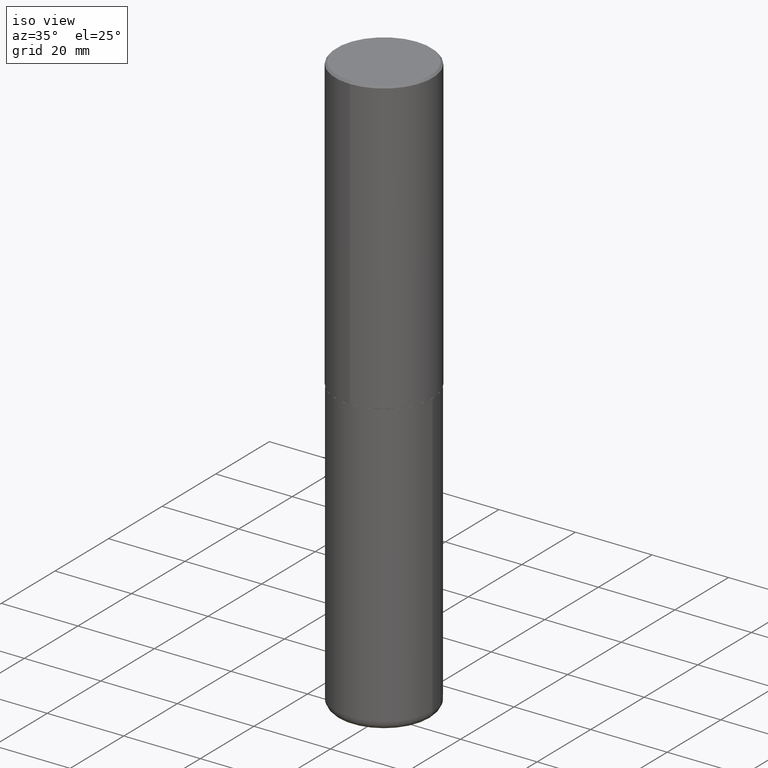
[diagram: clean part render]
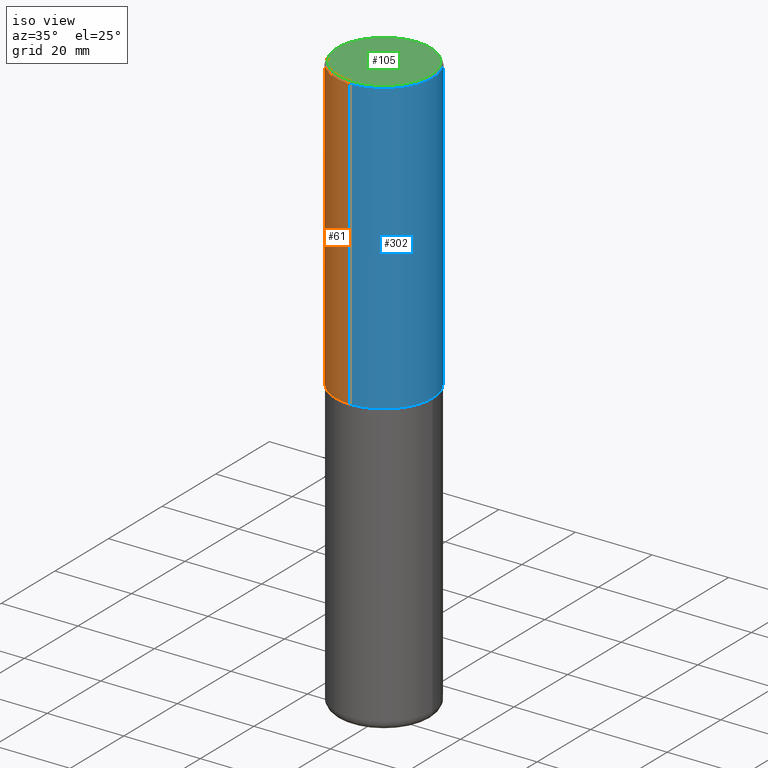
[diagram: same view with three faces highlighted in distinct colors, each labeled with its STEP entity id]
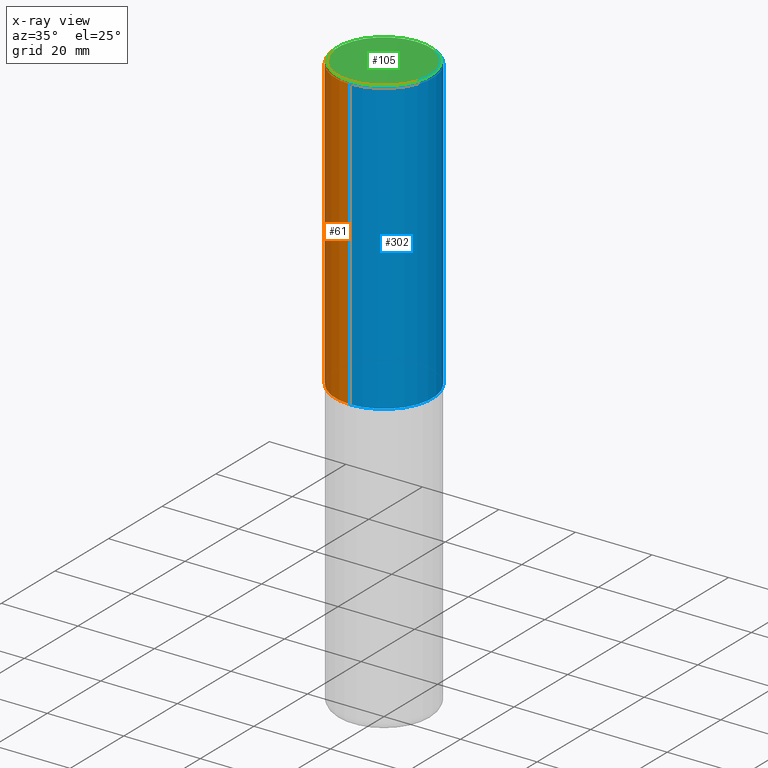
[diagram: x-ray of the same camera — body ghosted, the three highlighted faces saturated]
A machine part, iso view with three faces highlighted in distinct colors.
The next image is the same camera in x-ray (body ghosted, the three faces saturated) — at least one of them is partly hidden behind the body in this view.
Their STEP definitions:

[orange] entity #61 — the highlighted cylindrical surface (partial cylindrical patch) has radius 12.7 mm, axis along (-0, 0, 1).
#6 = DIRECTION ( 'NONE',  ( -6.982962677686265922E-15, -1.000000000000000000, 3.492298717528625990E-15 ) ) ;
#7 = AXIS2_PLACEMENT_3D ( 'NONE', #52, #16, #156 ) ;
#16 = DIRECTION ( 'NONE',  ( -2.444898033699712212E-29, 3.492298717528625990E-15, 1.000000000000000000 ) ) ;
#26 = VERTEX_POINT ( 'NONE', #236 ) ;
#27 = CARTESIAN_POINT ( 'NONE',  ( 3.552713678800539584E-15, 0.4999999999999898970, -2.999000000000001886 ) ) ;
#31 = DIRECTION ( 'NONE',  ( -2.444898033699711931E-29, 3.492298717528626385E-15, 1.000000000000000000 ) ) ;
#52 = CARTESIAN_POINT ( 'NONE',  ( 7.332249203065438921E-29, -1.047340385386834930E-14, -2.999000000000000554 ) ) ;
#57 = CARTESIAN_POINT ( 'NONE',  ( -3.430248998885764992E-15, -0.5000000000000001110, -0.01999999999999835937 ) ) ;
#61 = ADVANCED_FACE ( 'NONE', ( #182 ), #308, .T. ) ;
#98 = DIRECTION ( 'NONE',  ( -6.982962677686265922E-15, -1.000000000000000000, 3.491643216902136408E-15 ) ) ;
#121 = EDGE_CURVE ( 'NONE', #323, #26, #406, .T. ) ;
#135 = LINE ( 'NONE', #230, #366 ) ;
#136 = ORIENTED_EDGE ( 'NONE', *, *, #238, .F. ) ;
#138 = AXIS2_PLACEMENT_3D ( 'NONE', #272, #291, #98 ) ;
#149 = CARTESIAN_POINT ( 'NONE',  ( 0.000000000000000000, 0.000000000000000000, 0.000000000000000000 ) ) ;
#156 = DIRECTION ( 'NONE',  ( -6.982962677686266711E-15, -1.000000000000000000, 3.278217592397114284E-15 ) ) ;
#163 = VECTOR ( 'NONE', #31, 39.37007874015748143 ) ;
#173 = EDGE_CURVE ( 'NONE', #26, #231, #135, .T. ) ;
#182 = FACE_OUTER_BOUND ( 'NONE', #381, .T. ) ;
#187 = DIRECTION ( 'NONE',  ( -2.444898033699712212E-29, 3.492298717528625990E-15, 1.000000000000000000 ) ) ;
#196 = ORIENTED_EDGE ( 'NONE', *, *, #173, .T. ) ;
#198 = ORIENTED_EDGE ( 'NONE', *, *, #417, .F. ) ;
#224 = AXIS2_PLACEMENT_3D ( 'NONE', #149, #187, #6 ) ;
#230 = CARTESIAN_POINT ( 'NONE',  ( -3.491481338843133750E-15, -0.5000000000000001110, 1.746149358764313390E-15 ) ) ;
#231 = VERTEX_POINT ( 'NONE', #57 ) ;
#236 = CARTESIAN_POINT ( 'NONE',  ( -3.491481338843061569E-15, -0.5000000000000107692, -2.998999999999998778 ) ) ;
#238 = EDGE_CURVE ( 'NONE', #319, #231, #392, .T. ) ;
#254 = ORIENTED_EDGE ( 'NONE', *, *, #121, .T. ) ;
#263 = DIRECTION ( 'NONE',  ( -2.444898033699711931E-29, 3.492298717528626385E-15, 1.000000000000000000 ) ) ;
#272 = CARTESIAN_POINT ( 'NONE',  ( 4.889796067399450837E-31, -6.984597435057287381E-17, -0.02000000000000010797 ) ) ;
#291 = DIRECTION ( 'NONE',  ( -2.444898033699712212E-29, 3.492298717528625990E-15, 1.000000000000000000 ) ) ;
#298 = LINE ( 'NONE', #324, #163 ) ;
#308 = CYLINDRICAL_SURFACE ( 'NONE', #224, 0.5000000000000001110 ) ;
#319 = VERTEX_POINT ( 'NONE', #322 ) ;
#322 = CARTESIAN_POINT ( 'NONE',  ( 3.491481338843133355E-15, 0.4999999999999999445, -0.02000000000000185310 ) ) ;
#323 = VERTEX_POINT ( 'NONE', #27 ) ;
#324 = CARTESIAN_POINT ( 'NONE',  ( 3.552713678800501718E-15, 0.5000000000000001110, -1.746149358764313390E-15 ) ) ;
#366 = VECTOR ( 'NONE', #263, 39.37007874015748143 ) ;
#381 = EDGE_LOOP ( 'NONE', ( #198, #254, #196, #136 ) ) ;
#392 = CIRCLE ( 'NONE', #138, 0.5000000000000000000 ) ;
#406 = CIRCLE ( 'NONE', #7, 0.5000000000000002220 ) ;
#417 = EDGE_CURVE ( 'NONE', #323, #319, #298, .T. ) ;

[blue] entity #302 — the highlighted cylindrical surface (partial cylindrical patch) has radius 12.7 mm, axis along (-0, 0, 1).
#20 = DIRECTION ( 'NONE',  ( -6.982962677686265922E-15, -1.000000000000000000, 3.492298717528625990E-15 ) ) ;
#26 = VERTEX_POINT ( 'NONE', #236 ) ;
#27 = CARTESIAN_POINT ( 'NONE',  ( 3.552713678800539584E-15, 0.4999999999999898970, -2.999000000000001886 ) ) ;
#31 = DIRECTION ( 'NONE',  ( -2.444898033699711931E-29, 3.492298717528626385E-15, 1.000000000000000000 ) ) ;
#47 = ORIENTED_EDGE ( 'NONE', *, *, #173, .F. ) ;
#57 = CARTESIAN_POINT ( 'NONE',  ( -3.430248998885764992E-15, -0.5000000000000001110, -0.01999999999999835937 ) ) ;
#63 = CARTESIAN_POINT ( 'NONE',  ( 4.889796067399450837E-31, -6.984597435057287381E-17, -0.02000000000000010797 ) ) ;
#86 = CARTESIAN_POINT ( 'NONE',  ( 7.332249203065438921E-29, -1.047340385386834930E-14, -2.999000000000000554 ) ) ;
#89 = CIRCLE ( 'NONE', #270, 0.5000000000000002220 ) ;
#91 = FACE_OUTER_BOUND ( 'NONE', #262, .T. ) ;
#112 = CIRCLE ( 'NONE', #175, 0.5000000000000000000 ) ;
#115 = EDGE_CURVE ( 'NONE', #26, #323, #89, .T. ) ;
#126 = DIRECTION ( 'NONE',  ( -6.982962677686265922E-15, -1.000000000000000000, 3.491643216902136408E-15 ) ) ;
#129 = CARTESIAN_POINT ( 'NONE',  ( 0.000000000000000000, 0.000000000000000000, 0.000000000000000000 ) ) ;
#135 = LINE ( 'NONE', #230, #366 ) ;
#151 = ORIENTED_EDGE ( 'NONE', *, *, #255, .F. ) ;
#163 = VECTOR ( 'NONE', #31, 39.37007874015748143 ) ;
#169 = ORIENTED_EDGE ( 'NONE', *, *, #115, .T. ) ;
#170 = AXIS2_PLACEMENT_3D ( 'NONE', #129, #197, #20 ) ;
#173 = EDGE_CURVE ( 'NONE', #26, #231, #135, .T. ) ;
#175 = AXIS2_PLACEMENT_3D ( 'NONE', #63, #382, #126 ) ;
#197 = DIRECTION ( 'NONE',  ( -2.444898033699712212E-29, 3.492298717528625990E-15, 1.000000000000000000 ) ) ;
#220 = DIRECTION ( 'NONE',  ( -2.444898033699712212E-29, 3.492298717528625990E-15, 1.000000000000000000 ) ) ;
#230 = CARTESIAN_POINT ( 'NONE',  ( -3.491481338843133750E-15, -0.5000000000000001110, 1.746149358764313390E-15 ) ) ;
#231 = VERTEX_POINT ( 'NONE', #57 ) ;
#236 = CARTESIAN_POINT ( 'NONE',  ( -3.491481338843061569E-15, -0.5000000000000107692, -2.998999999999998778 ) ) ;
#255 = EDGE_CURVE ( 'NONE', #231, #319, #112, .T. ) ;
#262 = EDGE_LOOP ( 'NONE', ( #169, #306, #151, #47 ) ) ;
#263 = DIRECTION ( 'NONE',  ( -2.444898033699711931E-29, 3.492298717528626385E-15, 1.000000000000000000 ) ) ;
#270 = AXIS2_PLACEMENT_3D ( 'NONE', #86, #220, #344 ) ;
#290 = CYLINDRICAL_SURFACE ( 'NONE', #170, 0.5000000000000001110 ) ;
#298 = LINE ( 'NONE', #324, #163 ) ;
#302 = ADVANCED_FACE ( 'NONE', ( #91 ), #290, .T. ) ;
#306 = ORIENTED_EDGE ( 'NONE', *, *, #417, .T. ) ;
#319 = VERTEX_POINT ( 'NONE', #322 ) ;
#322 = CARTESIAN_POINT ( 'NONE',  ( 3.491481338843133355E-15, 0.4999999999999999445, -0.02000000000000185310 ) ) ;
#323 = VERTEX_POINT ( 'NONE', #27 ) ;
#324 = CARTESIAN_POINT ( 'NONE',  ( 3.552713678800501718E-15, 0.5000000000000001110, -1.746149358764313390E-15 ) ) ;
#344 = DIRECTION ( 'NONE',  ( -6.982962677686266711E-15, -1.000000000000000000, 3.278217592397114284E-15 ) ) ;
#366 = VECTOR ( 'NONE', #263, 39.37007874015748143 ) ;
#382 = DIRECTION ( 'NONE',  ( -2.444898033699712212E-29, 3.492298717528625990E-15, 1.000000000000000000 ) ) ;
#417 = EDGE_CURVE ( 'NONE', #323, #319, #298, .T. ) ;

[green] entity #105 — the highlighted planar face has unit normal (0, -0, -1).
#23 = DIRECTION ( 'NONE',  ( -6.982962677686265922E-15, -1.000000000000000000, 3.492298717528625990E-15 ) ) ;
#46 = PLANE ( 'NONE',  #276 ) ;
#55 = CIRCLE ( 'NONE', #261, 0.4799999999999999267 ) ;
#62 = AXIS2_PLACEMENT_3D ( 'NONE', #228, #317, #23 ) ;
#80 = CIRCLE ( 'NONE', #62, 0.4799999999999999267 ) ;
#105 = ADVANCED_FACE ( 'NONE', ( #340 ), #46, .F. ) ;
#119 = DIRECTION ( 'NONE',  ( 2.444898033699711371E-29, -3.492298717528626385E-15, -1.000000000000000000 ) ) ;
#124 = DIRECTION ( 'NONE',  ( 6.982962677686265922E-15, 1.000000000000000000, -3.492298717528626385E-15 ) ) ;
#125 = EDGE_CURVE ( 'NONE', #130, #376, #55, .T. ) ;
#130 = VERTEX_POINT ( 'NONE', #146 ) ;
#146 = CARTESIAN_POINT ( 'NONE',  ( 3.421651712066270057E-15, 0.4799999999999999267, -1.573466742882299844E-15 ) ) ;
#192 = EDGE_CURVE ( 'NONE', #376, #130, #80, .T. ) ;
#223 = DIRECTION ( 'NONE',  ( -6.982962677686265922E-15, -1.000000000000000000, 3.492298717528625990E-15 ) ) ;
#226 = EDGE_LOOP ( 'NONE', ( #325, #342 ) ) ;
#228 = CARTESIAN_POINT ( 'NONE',  ( -2.514251026725007597E-45, 3.591362713352002573E-31, 1.028366415314403880E-16 ) ) ;
#261 = AXIS2_PLACEMENT_3D ( 'NONE', #285, #402, #223 ) ;
#276 = AXIS2_PLACEMENT_3D ( 'NONE', #305, #119, #124 ) ;
#285 = CARTESIAN_POINT ( 'NONE',  ( -2.514251026725007597E-45, 3.591362713352002573E-31, 1.028366415314403880E-16 ) ) ;
#305 = CARTESIAN_POINT ( 'NONE',  ( 3.351822085289407153E-15, 0.4799999999999999267, -1.624885063648019971E-15 ) ) ;
#317 = DIRECTION ( 'NONE',  ( -2.444898033699712212E-29, 3.492298717528625990E-15, 1.000000000000000000 ) ) ;
#325 = ORIENTED_EDGE ( 'NONE', *, *, #125, .T. ) ;
#340 = FACE_OUTER_BOUND ( 'NONE', #226, .T. ) ;
#342 = ORIENTED_EDGE ( 'NONE', *, *, #192, .T. ) ;
#365 = CARTESIAN_POINT ( 'NONE',  ( -3.361644018908049661E-15, -0.4799999999999999267, 1.779140025945180744E-15 ) ) ;
#376 = VERTEX_POINT ( 'NONE', #365 ) ;
#402 = DIRECTION ( 'NONE',  ( -2.444898033699712212E-29, 3.492298717528625990E-15, 1.000000000000000000 ) ) ;